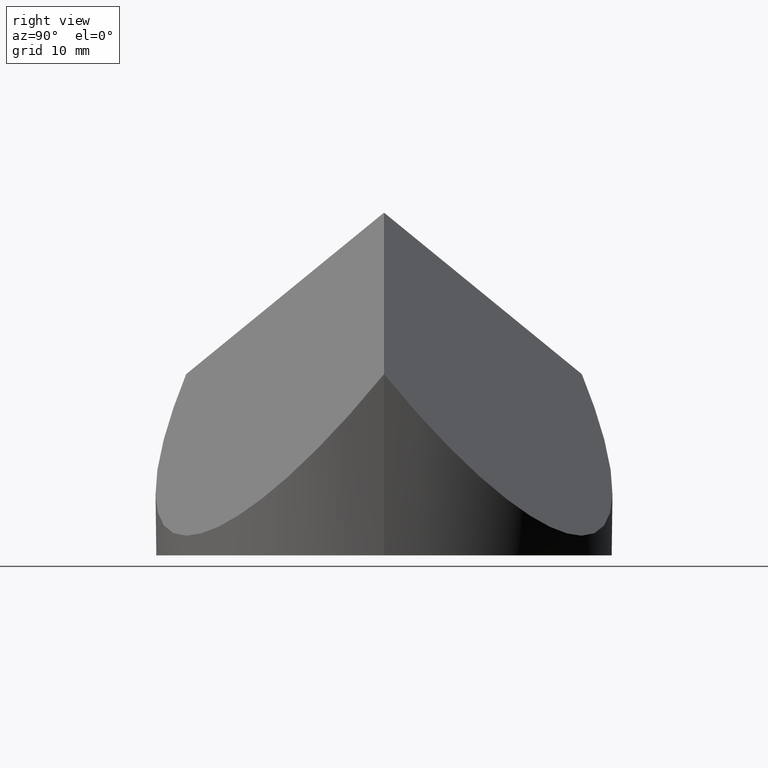
[diagram: clean part render]
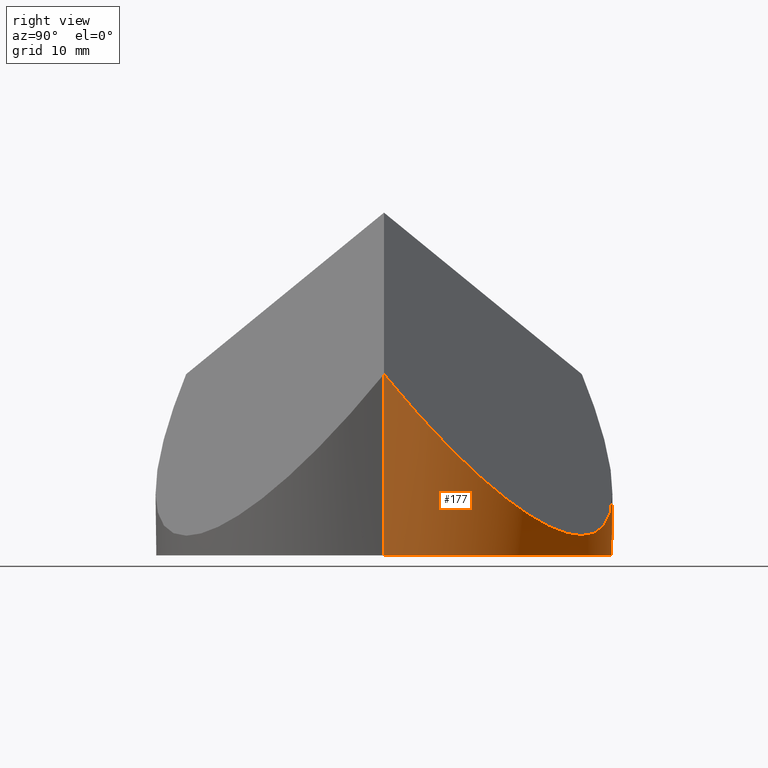
[diagram: same view with one face highlighted and labeled with its STEP entity id]
A machine part, right view. The second image highlights one B-rep face of the part: STEP entity #177.
In plain terms, the highlighted cylindrical surface (partial cylindrical patch) has radius 19 mm, axis along (-0, -0, -1).
Its self-contained STEP definition (entity closure, byte-faithful):
#9 = DIRECTION ( 'NONE',  ( -1.000000000000000000, 0.0000000000000000000, 0.0000000000000000000 ) ) ;
#11 = EDGE_CURVE ( 'NONE', #134, #50, #34, .T. ) ;
#15 = CARTESIAN_POINT ( 'NONE',  ( 19.00000000000001400, 5.354801039138735000E-032, 15.06776144854982000 ) ) ;
#27 = VECTOR ( 'NONE', #130, 1000.000000000000000 ) ;
#34 = LINE ( 'NONE', #189, #110 ) ;
#35 = CARTESIAN_POINT ( 'NONE',  ( -19.00000000000000000, 0.0000000000000000000, 0.0000000000000000000 ) ) ;
#40 = ORIENTED_EDGE ( 'NONE', *, *, #202, .T. ) ;
#50 = VERTEX_POINT ( 'NONE', #219 ) ;
#53 =( BOUNDED_CURVE ( )  B_SPLINE_CURVE ( 3, ( #56, #213, #285, #62 ),
 .UNSPECIFIED., .F., .F. ) 
 B_SPLINE_CURVE_WITH_KNOTS ( ( 4, 4 ),
 ( 5.235987755982986200, 7.330382858376182800 ),
 .UNSPECIFIED. ) 
 CURVE ( )  GEOMETRIC_REPRESENTATION_ITEM ( )  RATIONAL_B_SPLINE_CURVE ( ( 1.000000000000000000, 0.6666666666666663000, 0.6666666666666663000, 1.000000000000000000 ) ) 
 REPRESENTATION_ITEM ( '' )  );
#56 = CARTESIAN_POINT ( 'NONE',  ( 19.00000000000001400, 5.354801039138735000E-032, 15.06776144854982000 ) ) ;
#60 = DIRECTION ( 'NONE',  ( -0.0000000000000000000, -0.0000000000000000000, -1.000000000000000000 ) ) ;
#62 = CARTESIAN_POINT ( 'NONE',  ( -9.500000000000021300, 16.45448267190432300, 15.06776144854974600 ) ) ;
#63 = CARTESIAN_POINT ( 'NONE',  ( -9.500000000000021300, 16.45448267190432300, 15.06776144854974600 ) ) ;
#66 = CIRCLE ( 'NONE', #267, 19.00000000000000000 ) ;
#75 = CARTESIAN_POINT ( 'NONE',  ( -9.500000000000021300, 16.45448267190432300, 15.06776144854974600 ) ) ;
#85 = ORIENTED_EDGE ( 'NONE', *, *, #109, .T. ) ;
#89 = CARTESIAN_POINT ( 'NONE',  ( -19.00000000000000000, 0.0000000000000000000, 1.635522897099547900 ) ) ;
#92 = CARTESIAN_POINT ( 'NONE',  ( 0.0000000000000000000, 0.0000000000000000000, 28.50000000000000000 ) ) ;
#95 = VERTEX_POINT ( 'NONE', #89 ) ;
#97 = EDGE_CURVE ( 'NONE', #95, #123, #269, .T. ) ;
#109 = EDGE_CURVE ( 'NONE', #50, #123, #66, .T. ) ;
#110 = VECTOR ( 'NONE', #60, 1000.000000000000000 ) ;
#112 = DIRECTION ( 'NONE',  ( 1.000000000000000000, 0.0000000000000000000, 0.0000000000000000000 ) ) ;
#114 = AXIS2_PLACEMENT_3D ( 'NONE', #92, #156, #9 ) ;
#123 = VERTEX_POINT ( 'NONE', #35 ) ;
#129 = ORIENTED_EDGE ( 'NONE', *, *, #11, .T. ) ;
#130 = DIRECTION ( 'NONE',  ( -0.0000000000000000000, -0.0000000000000000000, -1.000000000000000000 ) ) ;
#132 = EDGE_CURVE ( 'NONE', #134, #198, #53, .T. ) ;
#134 = VERTEX_POINT ( 'NONE', #15 ) ;
#137 = CYLINDRICAL_SURFACE ( 'NONE', #114, 19.00000000000000000 ) ;
#156 = DIRECTION ( 'NONE',  ( -0.0000000000000000000, -0.0000000000000000000, -1.000000000000000000 ) ) ;
#171 = CARTESIAN_POINT ( 'NONE',  ( -19.00000000000000400, 6.954482671904324700, 1.635522897099544300 ) ) ;
#177 = ADVANCED_FACE ( 'NONE', ( #209 ), #137, .T. ) ;
#178 = ORIENTED_EDGE ( 'NONE', *, *, #97, .F. ) ;
#186 = DIRECTION ( 'NONE',  ( 0.0000000000000000000, 0.0000000000000000000, 1.000000000000000000 ) ) ;
#189 = CARTESIAN_POINT ( 'NONE',  ( 19.00000000000000000, 2.326828918379970600E-015, 28.50000000000000000 ) ) ;
#193 =( BOUNDED_CURVE ( )  B_SPLINE_CURVE ( 3, ( #232, #171, #276, #63 ),
 .UNSPECIFIED., .F., .F. ) 
 B_SPLINE_CURVE_WITH_KNOTS ( ( 4, 4 ),
 ( 0.0000000000000000000, 1.047197551196596500 ),
 .UNSPECIFIED. ) 
 CURVE ( )  GEOMETRIC_REPRESENTATION_ITEM ( )  RATIONAL_B_SPLINE_CURVE ( ( 1.000000000000000000, 0.9106836025229592100, 0.9106836025229592100, 1.000000000000000000 ) ) 
 REPRESENTATION_ITEM ( '' )  );
#198 = VERTEX_POINT ( 'NONE', #75 ) ;
#202 = EDGE_CURVE ( 'NONE', #95, #198, #193, .T. ) ;
#209 = FACE_OUTER_BOUND ( 'NONE', #237, .T. ) ;
#213 = CARTESIAN_POINT ( 'NONE',  ( 19.00000000000000400, 16.45448267190435800, -5.080596378625568100 ) ) ;
#217 = CARTESIAN_POINT ( 'NONE',  ( 0.0000000000000000000, 0.0000000000000000000, 0.0000000000000000000 ) ) ;
#219 = CARTESIAN_POINT ( 'NONE',  ( 19.00000000000000000, 2.326828918379970600E-015, 0.0000000000000000000 ) ) ;
#221 = CARTESIAN_POINT ( 'NONE',  ( -19.00000000000000000, 0.0000000000000000000, 28.50000000000000000 ) ) ;
#232 = CARTESIAN_POINT ( 'NONE',  ( -19.00000000000000000, 0.0000000000000000000, 1.635522897099547900 ) ) ;
#237 = EDGE_LOOP ( 'NONE', ( #310, #129, #85, #178, #40 ) ) ;
#267 = AXIS2_PLACEMENT_3D ( 'NONE', #217, #186, #112 ) ;
#269 = LINE ( 'NONE', #221, #27 ) ;
#276 = CARTESIAN_POINT ( 'NONE',  ( -15.52275866404784700, 12.97724133595215400, 6.552063436623003900 ) ) ;
#285 = CARTESIAN_POINT ( 'NONE',  ( 4.749999999999983100, 24.68172400785652300, -5.080596378625613400 ) ) ;
#310 = ORIENTED_EDGE ( 'NONE', *, *, #132, .F. ) ;